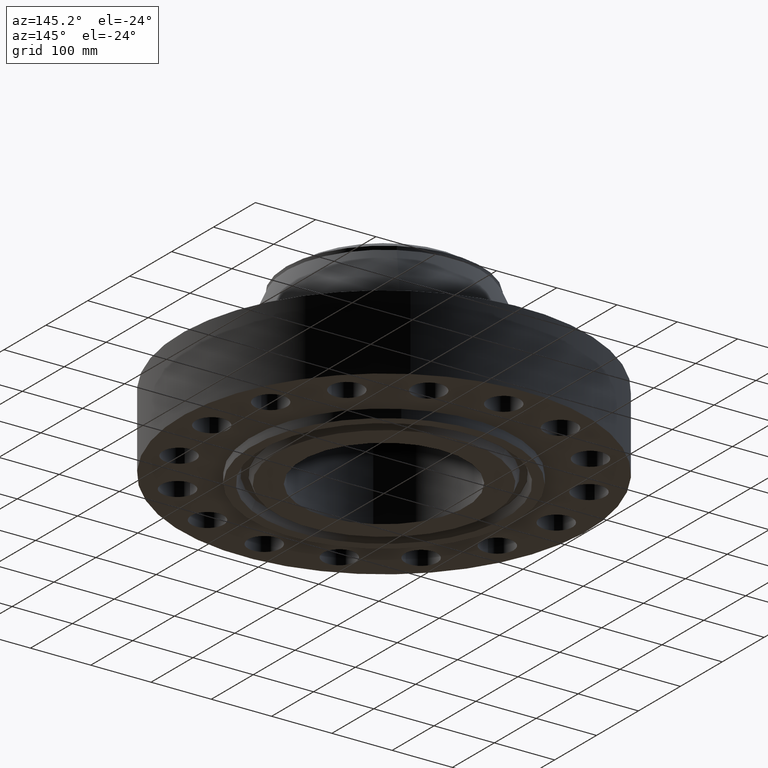
[diagram: clean part render]
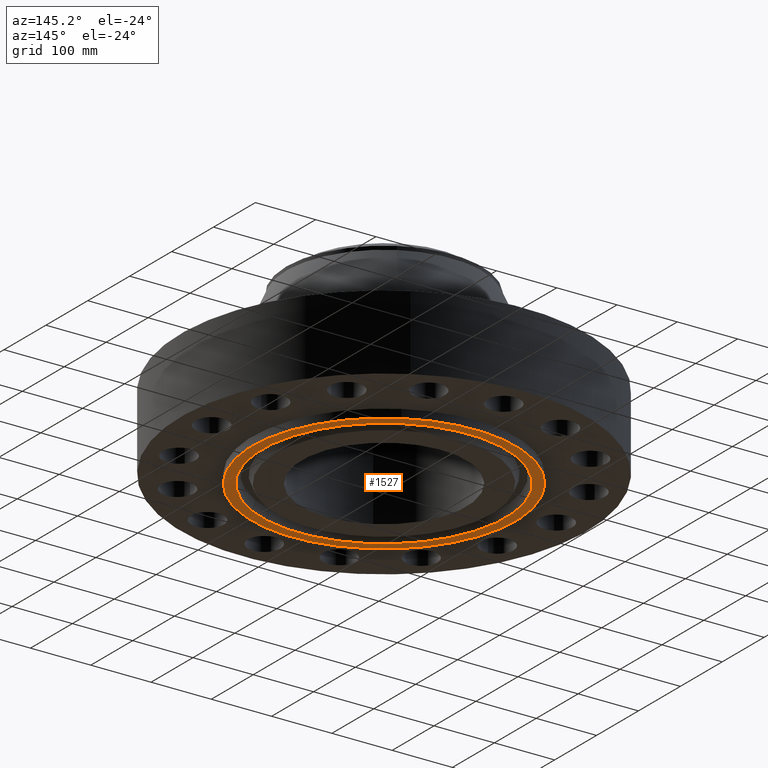
[diagram: same view with one face highlighted and labeled with its STEP entity id]
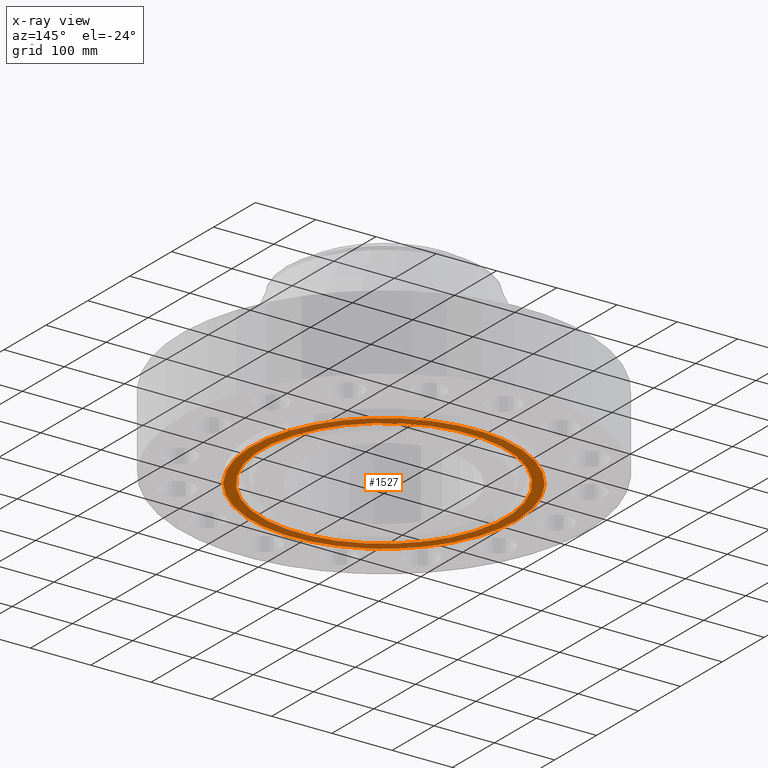
[diagram: x-ray of the same camera — body ghosted, the highlighted face saturated]
A machine part, auxiliary view. The second image highlights one B-rep face of the part: STEP entity #1527.
The next image is the same camera in x-ray: the body ghosted, the highlighted face saturated — about 0% of this face is hidden behind the body in this view.
In plain terms, the highlighted planar face has unit normal (0, 0, -1).
Its self-contained STEP definition (entity closure, byte-faithful):
#517=AXIS2_PLACEMENT_3D('Circle Axis2P3D',#515,#516,$) ;
#552=AXIS2_PLACEMENT_3D('Circle Axis2P3D',#550,#551,$) ;
#1503=AXIS2_PLACEMENT_3D('Plane Axis2P3D',#1500,#1501,#1502) ;
#1511=AXIS2_PLACEMENT_3D('Circle Axis2P3D',#1509,#1510,$) ;
#1520=AXIS2_PLACEMENT_3D('Circle Axis2P3D',#1518,#1519,$) ;
#515=CARTESIAN_POINT('Axis2P3D Location',(0.,0.,-0.563000000002)) ;
#519=CARTESIAN_POINT('Vertex',(-4.13504527048,-7.56914959633,-0.563000000002)) ;
#521=CARTESIAN_POINT('Vertex',(4.13504527048,7.56914959633,-0.563000000002)) ;
#550=CARTESIAN_POINT('Axis2P3D Location',(0.,0.,-0.563000000002)) ;
#1500=CARTESIAN_POINT('Axis2P3D Location',(0.,5.37500000002,-0.563000000002)) ;
#1509=CARTESIAN_POINT('Axis2P3D Location',(2.79741234551E-016,1.1189649382E-015,-0.563000000002)) ;
#1513=CARTESIAN_POINT('Vertex',(3.81287130853,-6.97941411474,-0.563000000002)) ;
#1515=CARTESIAN_POINT('Vertex',(-3.81287130853,6.97941411474,-0.563000000002)) ;
#1518=CARTESIAN_POINT('Axis2P3D Location',(2.79741234551E-016,0.,-0.563000000002)) ;
#516=DIRECTION('Axis2P3D Direction',(0.,0.,-0.0393700787402)) ;
#551=DIRECTION('Axis2P3D Direction',(0.,0.,-0.0393700787402)) ;
#1501=DIRECTION('Axis2P3D Direction',(0.,0.,-0.0393700787402)) ;
#1502=DIRECTION('Axis2P3D XDirection',(0.0393700787402,0.,0.)) ;
#1510=DIRECTION('Axis2P3D Direction',(0.,0.,-0.0393700787402)) ;
#1519=DIRECTION('Axis2P3D Direction',(0.,0.,-0.0393700787402)) ;
#1506=ORIENTED_EDGE('',*,*,#523,.T.) ;
#1507=ORIENTED_EDGE('',*,*,#554,.T.) ;
#1524=ORIENTED_EDGE('',*,*,#1517,.F.) ;
#1525=ORIENTED_EDGE('',*,*,#1522,.F.) ;
#1526=FACE_BOUND('',#1523,.T.) ;
#1527=ADVANCED_FACE('PartBody',(#1508,#1526),#1504,.T.) ;
#518=CIRCLE('generated circle',#517,8.62500000003) ;
#553=CIRCLE('generated circle',#552,8.62500000003) ;
#1512=CIRCLE('generated circle',#1511,7.95300000003) ;
#1521=CIRCLE('generated circle',#1520,7.95300000003) ;
#523=EDGE_CURVE('',#520,#522,#518,.T.) ;
#554=EDGE_CURVE('',#522,#520,#553,.T.) ;
#1517=EDGE_CURVE('',#1514,#1516,#1512,.T.) ;
#1522=EDGE_CURVE('',#1516,#1514,#1521,.T.) ;
#1505=EDGE_LOOP('',(#1506,#1507)) ;
#1523=EDGE_LOOP('',(#1524,#1525)) ;
#1508=FACE_OUTER_BOUND('',#1505,.T.) ;
#1504=PLANE('',#1503) ;
#520=VERTEX_POINT('',#519) ;
#522=VERTEX_POINT('',#521) ;
#1514=VERTEX_POINT('',#1513) ;
#1516=VERTEX_POINT('',#1515) ;